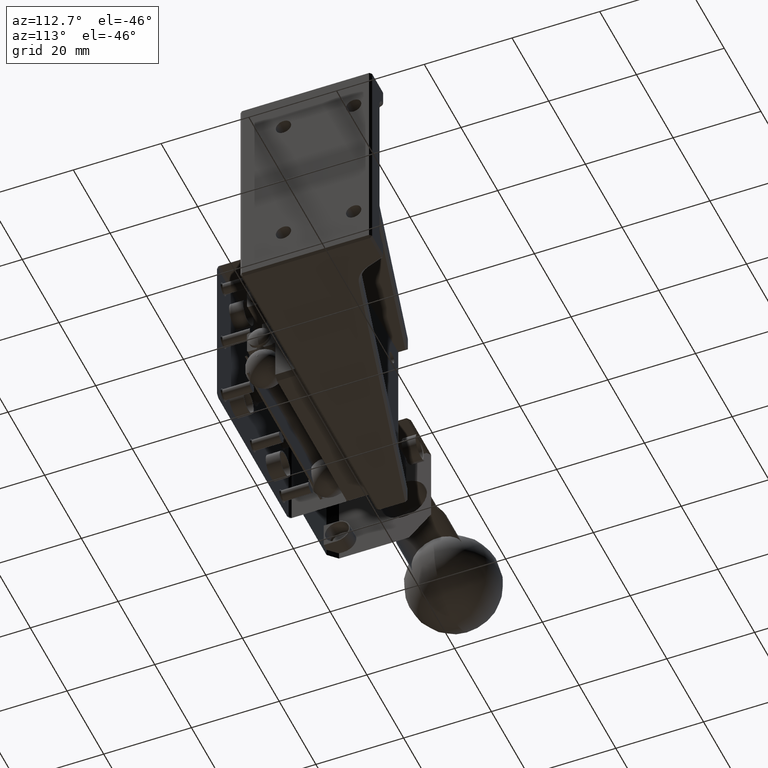
[diagram: clean part render]
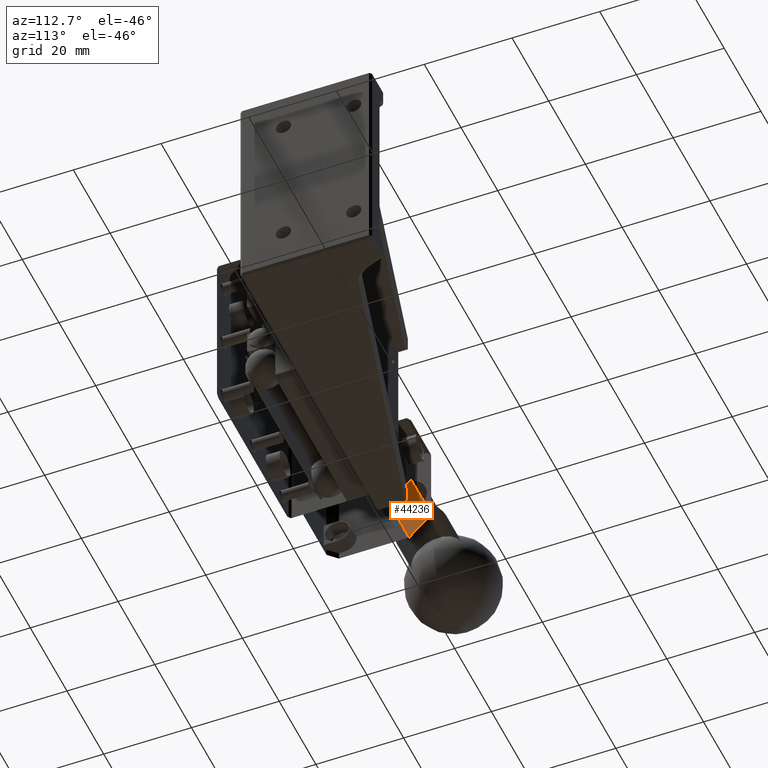
[diagram: same view with one face highlighted and labeled with its STEP entity id]
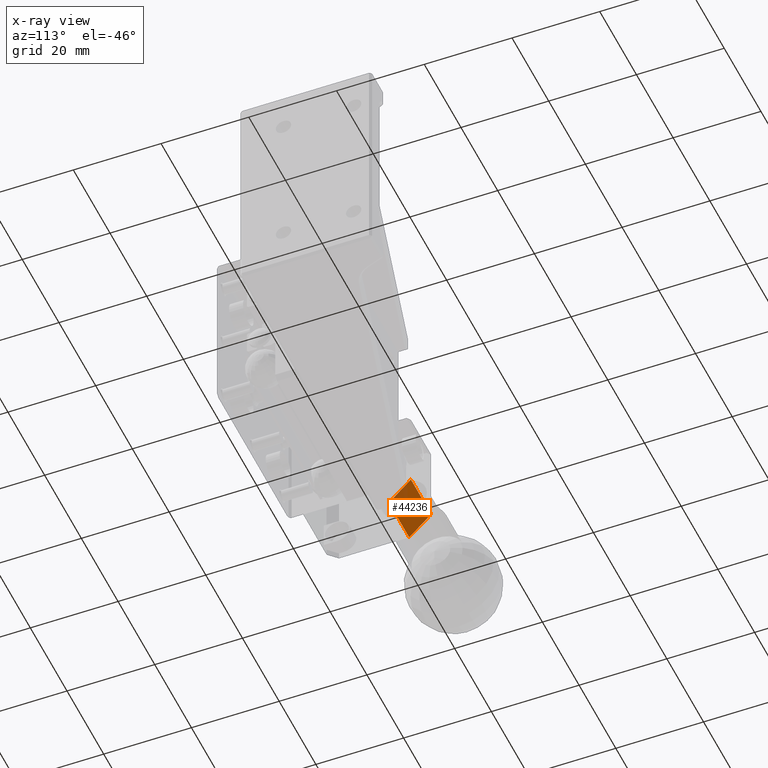
[diagram: x-ray of the same camera — body ghosted, the highlighted face saturated]
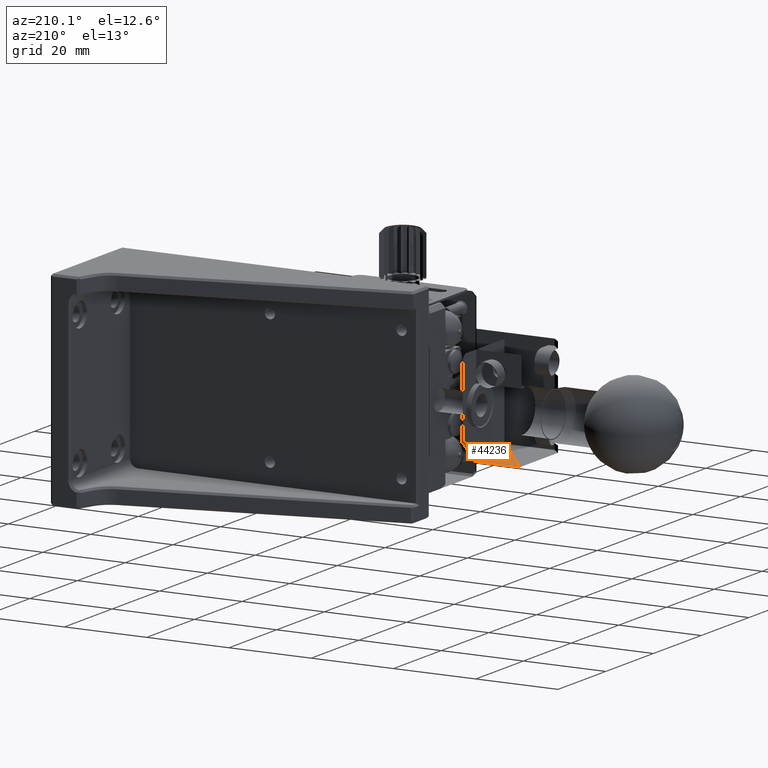
[diagram: same view with one face highlighted and labeled with its STEP entity id]
A machine part, auxiliary view. The second image highlights one B-rep face of the part: STEP entity #44236.
The next image is the same camera in x-ray: the body ghosted, the highlighted face saturated — about 16% of this face is hidden behind the body in this view.
A second angle (auxiliary view) of the same face is appended — the face is thin or edge-on in the first view.
In plain terms, the highlighted planar face has unit normal (0, -0.7071, 0.7071).
Its self-contained STEP definition (entity closure, byte-faithful):
#3337 = VECTOR ( 'NONE', #23527, 999.9999999999998863 ) ;
#3516 = CARTESIAN_POINT ( 'NONE',  ( 11.00000000000000000, 23.00000000000000000, -6.999999999999999112 ) ) ;
#3650 = FACE_OUTER_BOUND ( 'NONE', #12851, .T. ) ;
#5044 = LINE ( 'NONE', #19452, #30125 ) ;
#8756 = DIRECTION ( 'NONE',  ( -1.000000000000000000, -0.000000000000000000, 0.000000000000000000 ) ) ;
#8978 = CARTESIAN_POINT ( 'NONE',  ( 0.000000000000000000, 18.00000000000000355, -12.00000000000000000 ) ) ;
#9575 = VERTEX_POINT ( 'NONE', #24180 ) ;
#10350 = DIRECTION ( 'NONE',  ( 0.000000000000000000, -0.7071067811865480168, 0.7071067811865470176 ) ) ;
#10603 = CARTESIAN_POINT ( 'NONE',  ( 22.00000000000000000, 18.00000000000000355, -12.00000000000000000 ) ) ;
#12851 = EDGE_LOOP ( 'NONE', ( #28187, #40566, #24305, #23200 ) ) ;
#13069 = DIRECTION ( 'NONE',  ( -1.000000000000000000, -0.000000000000000000, -0.000000000000000000 ) ) ;
#13294 = VECTOR ( 'NONE', #16747, 1000.000000000000000 ) ;
#14191 = VECTOR ( 'NONE', #13069, 1000.000000000000000 ) ;
#14355 = EDGE_CURVE ( 'NONE', #9575, #47761, #35046, .T. ) ;
#16747 = DIRECTION ( 'NONE',  ( -0.000000000000000000, 0.7071067811865470176, 0.7071067811865480168 ) ) ;
#19452 = CARTESIAN_POINT ( 'NONE',  ( 22.00000000000000000, 18.00000000000000355, -12.00000000000000000 ) ) ;
#23200 = ORIENTED_EDGE ( 'NONE', *, *, #14355, .F. ) ;
#23527 = DIRECTION ( 'NONE',  ( 0.000000000000000000, 0.7071067811865473507, 0.7071067811865477948 ) ) ;
#23675 = CARTESIAN_POINT ( 'NONE',  ( 11.00000000000000000, 18.00000000000000355, -12.00000000000000000 ) ) ;
#24180 = CARTESIAN_POINT ( 'NONE',  ( 11.00000000000000000, 17.99999999999999645, -12.00000000000000000 ) ) ;
#24305 = ORIENTED_EDGE ( 'NONE', *, *, #35056, .F. ) ;
#25187 = VERTEX_POINT ( 'NONE', #38154 ) ;
#25449 = DIRECTION ( 'NONE',  ( 0.000000000000000000, -0.7071067811865470176, -0.7071067811865480168 ) ) ;
#28187 = ORIENTED_EDGE ( 'NONE', *, *, #35426, .T. ) ;
#30125 = VECTOR ( 'NONE', #8756, 1000.000000000000000 ) ;
#32868 = PLANE ( 'NONE',  #35838 ) ;
#34650 = LINE ( 'NONE', #38595, #3337 ) ;
#35046 = LINE ( 'NONE', #23675, #13294 ) ;
#35056 = EDGE_CURVE ( 'NONE', #47761, #25187, #46481, .T. ) ;
#35426 = EDGE_CURVE ( 'NONE', #9575, #39481, #5044, .T. ) ;
#35838 = AXIS2_PLACEMENT_3D ( 'NONE', #10603, #10350, #25449 ) ;
#38154 = CARTESIAN_POINT ( 'NONE',  ( 0.000000000000000000, 23.00000000000000000, -6.999999999999999112 ) ) ;
#38595 = CARTESIAN_POINT ( 'NONE',  ( 0.000000000000000000, 18.00000000000000355, -12.00000000000000000 ) ) ;
#39481 = VERTEX_POINT ( 'NONE', #8978 ) ;
#40566 = ORIENTED_EDGE ( 'NONE', *, *, #42444, .T. ) ;
#42444 = EDGE_CURVE ( 'NONE', #39481, #25187, #34650, .T. ) ;
#44236 = ADVANCED_FACE ( 'NONE', ( #3650 ), #32868, .F. ) ;
#46481 = LINE ( 'NONE', #46980, #14191 ) ;
#46980 = CARTESIAN_POINT ( 'NONE',  ( 22.00000000000000000, 22.99999999999999645, -6.999999999999998224 ) ) ;
#47761 = VERTEX_POINT ( 'NONE', #3516 ) ;